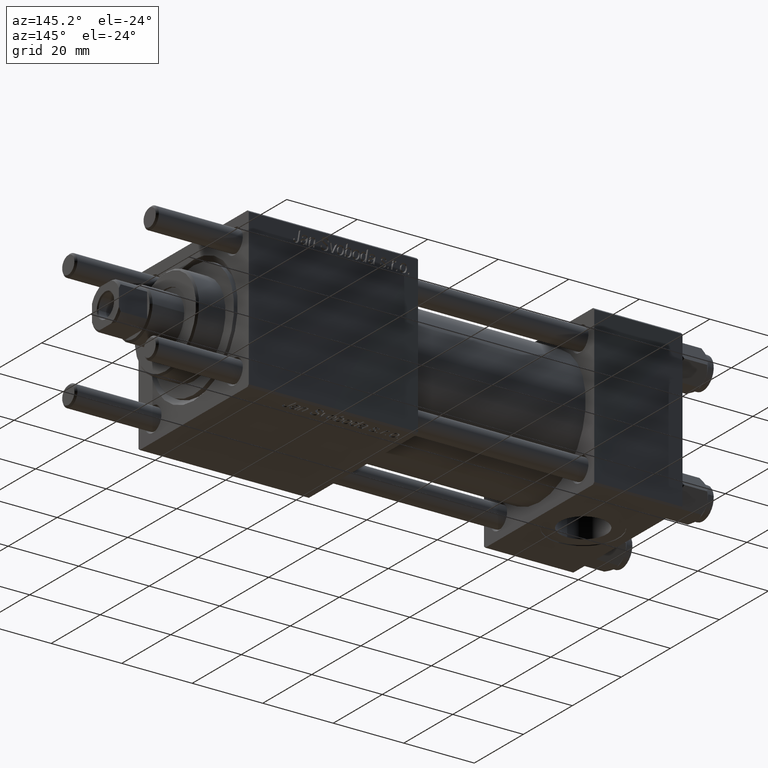
[diagram: clean part render]
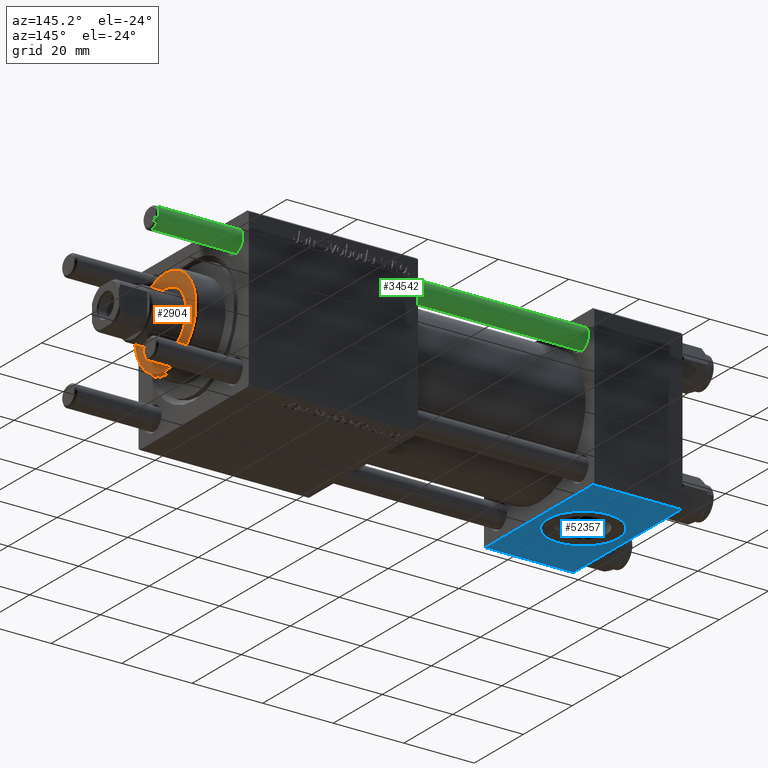
[diagram: same view with three faces highlighted in distinct colors, each labeled with its STEP entity id]
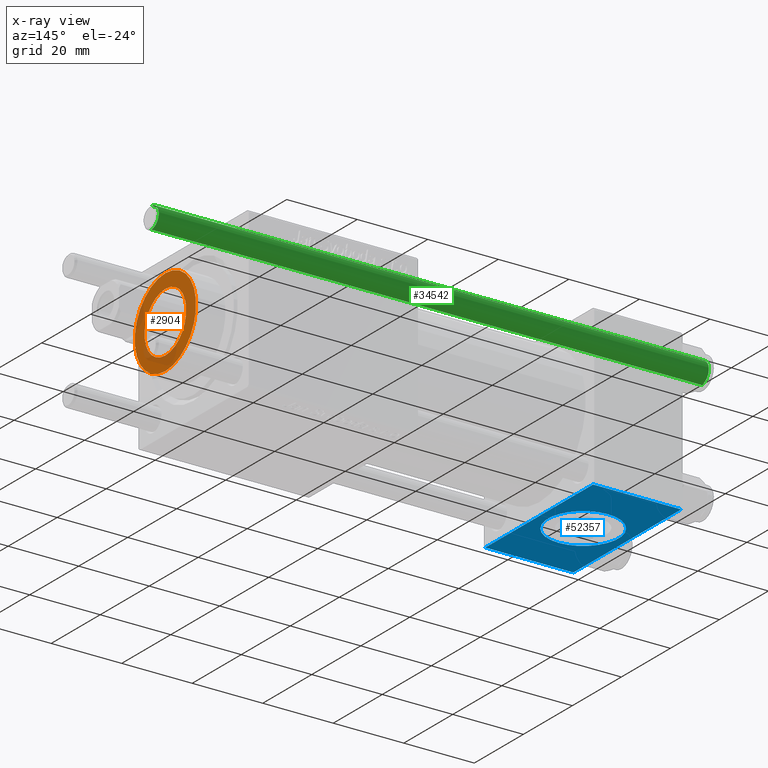
[diagram: x-ray of the same camera — body ghosted, the three highlighted faces saturated]
A machine part, auxiliary view with three faces highlighted in distinct colors.
The next image is the same camera in x-ray (body ghosted, the three faces saturated) — at least one of them is partly hidden behind the body in this view.
Their STEP definitions:

[orange] entity #2904 — the highlighted planar face has unit normal (1, 0, 0).
#600 = FACE_BOUND ( 'NONE', #33283, .T. ) ;
#862 = DIRECTION ( 'NONE',  ( 0.000000000000000000, 0.000000000000000000, 1.000000000000000000 ) ) ;
#1256 = DIRECTION ( 'NONE',  ( 0.000000000000000000, 0.000000000000000000, 1.000000000000000000 ) ) ;
#2904 = ADVANCED_FACE ( 'NONE', ( #600, #8664 ), #17843, .T. ) ;
#4556 = EDGE_LOOP ( 'NONE', ( #48103, #37618 ) ) ;
#8631 = DIRECTION ( 'NONE',  ( 0.000000000000000000, 0.000000000000000000, 1.000000000000000000 ) ) ;
#8664 = FACE_OUTER_BOUND ( 'NONE', #4556, .T. ) ;
#8905 = DIRECTION ( 'NONE',  ( 1.000000000000000000, 0.000000000000000000, 0.000000000000000000 ) ) ;
#11974 = CIRCLE ( 'NONE', #40408, 12.50000000000001066 ) ;
#12709 = VERTEX_POINT ( 'NONE', #14863 ) ;
#14863 = CARTESIAN_POINT ( 'NONE',  ( -12.50000000000001066, 0.000000000000000000, 36.69999999999999574 ) ) ;
#15055 = DIRECTION ( 'NONE',  ( 0.000000000000000000, 0.000000000000000000, 1.000000000000000000 ) ) ;
#15156 = ORIENTED_EDGE ( 'NONE', *, *, #29427, .F. ) ;
#17193 = CIRCLE ( 'NONE', #21777, 12.50000000000001066 ) ;
#17843 = PLANE ( 'NONE',  #20285 ) ;
#19200 = CIRCLE ( 'NONE', #26521, 8.500000000000000000 ) ;
#20285 = AXIS2_PLACEMENT_3D ( 'NONE', #30765, #44520, #22707 ) ;
#21777 = AXIS2_PLACEMENT_3D ( 'NONE', #49483, #1256, #36287 ) ;
#22000 = CIRCLE ( 'NONE', #44922, 8.500000000000000000 ) ;
#22092 = CARTESIAN_POINT ( 'NONE',  ( 8.500000000000000000, 0.000000000000000000, 36.69999999999999574 ) ) ;
#22707 = DIRECTION ( 'NONE',  ( 1.000000000000000000, 0.000000000000000000, -0.000000000000000000 ) ) ;
#22740 = EDGE_CURVE ( 'NONE', #40195, #12709, #17193, .T. ) ;
#26308 = VERTEX_POINT ( 'NONE', #42284 ) ;
#26521 = AXIS2_PLACEMENT_3D ( 'NONE', #28247, #15055, #54938 ) ;
#27279 = DIRECTION ( 'NONE',  ( 1.000000000000000000, 0.000000000000000000, 0.000000000000000000 ) ) ;
#27734 = ORIENTED_EDGE ( 'NONE', *, *, #30985, .F. ) ;
#28247 = CARTESIAN_POINT ( 'NONE',  ( 0.000000000000000000, 0.000000000000000000, 36.69999999999999574 ) ) ;
#29427 = EDGE_CURVE ( 'NONE', #26308, #56245, #19200, .T. ) ;
#30765 = CARTESIAN_POINT ( 'NONE',  ( 0.000000000000000000, 0.000000000000000000, 36.69999999999999574 ) ) ;
#30985 = EDGE_CURVE ( 'NONE', #56245, #26308, #22000, .T. ) ;
#32610 = EDGE_CURVE ( 'NONE', #12709, #40195, #11974, .T. ) ;
#33283 = EDGE_LOOP ( 'NONE', ( #27734, #15156 ) ) ;
#34391 = CARTESIAN_POINT ( 'NONE',  ( 12.50000000000001066, 1.561424668912876097E-15, 36.69999999999999574 ) ) ;
#35032 = CARTESIAN_POINT ( 'NONE',  ( 0.000000000000000000, 0.000000000000000000, 36.69999999999999574 ) ) ;
#36287 = DIRECTION ( 'NONE',  ( 1.000000000000000000, 0.000000000000000000, 0.000000000000000000 ) ) ;
#37618 = ORIENTED_EDGE ( 'NONE', *, *, #22740, .T. ) ;
#40195 = VERTEX_POINT ( 'NONE', #34391 ) ;
#40408 = AXIS2_PLACEMENT_3D ( 'NONE', #47681, #862, #27279 ) ;
#42284 = CARTESIAN_POINT ( 'NONE',  ( -8.500000000000000000, 1.040949779275250140E-15, 36.69999999999999574 ) ) ;
#44520 = DIRECTION ( 'NONE',  ( 0.000000000000000000, 0.000000000000000000, 1.000000000000000000 ) ) ;
#44922 = AXIS2_PLACEMENT_3D ( 'NONE', #35032, #8631, #8905 ) ;
#47681 = CARTESIAN_POINT ( 'NONE',  ( 0.000000000000000000, 0.000000000000000000, 36.69999999999999574 ) ) ;
#48103 = ORIENTED_EDGE ( 'NONE', *, *, #32610, .T. ) ;
#49483 = CARTESIAN_POINT ( 'NONE',  ( 0.000000000000000000, 0.000000000000000000, 36.69999999999999574 ) ) ;
#54938 = DIRECTION ( 'NONE',  ( 1.000000000000000000, 0.000000000000000000, 0.000000000000000000 ) ) ;
#56245 = VERTEX_POINT ( 'NONE', #22092 ) ;

[blue] entity #52357 — the highlighted planar face has unit normal (0, 0, -1).
#528 = ORIENTED_EDGE ( 'NONE', *, *, #33597, .F. ) ;
#2795 = AXIS2_PLACEMENT_3D ( 'NONE', #39071, #22122, #4337 ) ;
#3223 = VERTEX_POINT ( 'NONE', #28358 ) ;
#3735 = CIRCLE ( 'NONE', #2795, 10.00000000000000178 ) ;
#3782 = VECTOR ( 'NONE', #36614, 1000.000000000000000 ) ;
#4126 = EDGE_LOOP ( 'NONE', ( #53252, #528 ) ) ;
#4337 = DIRECTION ( 'NONE',  ( 0.000000000000000000, 1.000000000000000000, 0.000000000000000000 ) ) ;
#5605 = CARTESIAN_POINT ( 'NONE',  ( 25.00000000000000000, 21.99999999999999289, -22.49999999999999645 ) ) ;
#5719 = LINE ( 'NONE', #23244, #49802 ) ;
#7456 = VERTEX_POINT ( 'NONE', #31062 ) ;
#9746 = VERTEX_POINT ( 'NONE', #5605 ) ;
#9789 = DIRECTION ( 'NONE',  ( 0.000000000000000000, -1.000000000000000000, -2.312964634635742957E-16 ) ) ;
#11684 = VERTEX_POINT ( 'NONE', #24560 ) ;
#12097 = FACE_BOUND ( 'NONE', #4126, .T. ) ;
#12282 = CARTESIAN_POINT ( 'NONE',  ( 12.50000000000000178, 3.566060716959379104E-15, -22.50000000000000000 ) ) ;
#12915 = CARTESIAN_POINT ( 'NONE',  ( 0.000000000000000000, 21.99999999999999289, -22.49999999999999645 ) ) ;
#13915 = VERTEX_POINT ( 'NONE', #45787 ) ;
#14226 = EDGE_LOOP ( 'NONE', ( #15369, #56803, #29485, #24202 ) ) ;
#14754 = VECTOR ( 'NONE', #9789, 1000.000000000000000 ) ;
#15369 = ORIENTED_EDGE ( 'NONE', *, *, #55068, .F. ) ;
#22122 = DIRECTION ( 'NONE',  ( 0.000000000000000000, -1.734723475976806848E-16, -1.000000000000000000 ) ) ;
#23244 = CARTESIAN_POINT ( 'NONE',  ( 0.000000000000000000, -21.99999999999998579, -22.50000000000000711 ) ) ;
#24202 = ORIENTED_EDGE ( 'NONE', *, *, #45306, .T. ) ;
#24560 = CARTESIAN_POINT ( 'NONE',  ( 12.50000000000000178, 10.00000000000000533, -22.50000000000000000 ) ) ;
#25316 = FACE_OUTER_BOUND ( 'NONE', #14226, .T. ) ;
#25587 = DIRECTION ( 'NONE',  ( 0.000000000000000000, 2.312964634635742957E-16, -1.000000000000000000 ) ) ;
#28358 = CARTESIAN_POINT ( 'NONE',  ( 12.50000000000000355, -9.999999999999998224, -22.50000000000000000 ) ) ;
#29485 = ORIENTED_EDGE ( 'NONE', *, *, #34341, .T. ) ;
#29798 = DIRECTION ( 'NONE',  ( 0.000000000000000000, -1.734723475976806848E-16, -1.000000000000000000 ) ) ;
#31062 = CARTESIAN_POINT ( 'NONE',  ( 25.00000000000000000, -21.99999999999997158, -22.50000000000000711 ) ) ;
#31704 = LINE ( 'NONE', #35705, #52462 ) ;
#32304 = CIRCLE ( 'NONE', #41471, 10.00000000000000178 ) ;
#33597 = EDGE_CURVE ( 'NONE', #3223, #11684, #3735, .T. ) ;
#34341 = EDGE_CURVE ( 'NONE', #9746, #7456, #44803, .T. ) ;
#35009 = EDGE_CURVE ( 'NONE', #46998, #9746, #50393, .T. ) ;
#35705 = CARTESIAN_POINT ( 'NONE',  ( 0.000000000000000000, 22.50000000000000000, -22.49999999999999645 ) ) ;
#36614 = DIRECTION ( 'NONE',  ( 1.000000000000000000, 0.000000000000000000, 0.000000000000000000 ) ) ;
#37695 = AXIS2_PLACEMENT_3D ( 'NONE', #43647, #25587, #56318 ) ;
#39071 = CARTESIAN_POINT ( 'NONE',  ( 12.50000000000000178, 3.566060716959379104E-15, -22.50000000000000000 ) ) ;
#39341 = PLANE ( 'NONE',  #37695 ) ;
#40739 = DIRECTION ( 'NONE',  ( -1.000000000000000000, 0.000000000000000000, 0.000000000000000000 ) ) ;
#41471 = AXIS2_PLACEMENT_3D ( 'NONE', #12282, #29798, #47292 ) ;
#41762 = CARTESIAN_POINT ( 'NONE',  ( 25.00000000000000000, 21.99999999999999289, -22.49999999999999645 ) ) ;
#43647 = CARTESIAN_POINT ( 'NONE',  ( 25.00000000000000000, 22.50000000000000000, -22.49999999999999645 ) ) ;
#44803 = LINE ( 'NONE', #48838, #14754 ) ;
#45306 = EDGE_CURVE ( 'NONE', #7456, #13915, #5719, .T. ) ;
#45787 = CARTESIAN_POINT ( 'NONE',  ( 0.000000000000000000, -21.99999999999997158, -22.50000000000000711 ) ) ;
#46998 = VERTEX_POINT ( 'NONE', #12915 ) ;
#47292 = DIRECTION ( 'NONE',  ( 0.000000000000000000, 1.000000000000000000, 0.000000000000000000 ) ) ;
#48838 = CARTESIAN_POINT ( 'NONE',  ( 25.00000000000000000, 22.50000000000000000, -22.49999999999999645 ) ) ;
#49770 = DIRECTION ( 'NONE',  ( 0.000000000000000000, -1.000000000000000000, -2.312964634635742957E-16 ) ) ;
#49802 = VECTOR ( 'NONE', #40739, 1000.000000000000000 ) ;
#50393 = LINE ( 'NONE', #41762, #3782 ) ;
#52357 = ADVANCED_FACE ( 'NONE', ( #12097, #25316 ), #39341, .T. ) ;
#52462 = VECTOR ( 'NONE', #49770, 1000.000000000000000 ) ;
#53252 = ORIENTED_EDGE ( 'NONE', *, *, #55433, .F. ) ;
#55068 = EDGE_CURVE ( 'NONE', #46998, #13915, #31704, .T. ) ;
#55433 = EDGE_CURVE ( 'NONE', #11684, #3223, #32304, .T. ) ;
#56318 = DIRECTION ( 'NONE',  ( 0.000000000000000000, 1.000000000000000000, 2.312964634635742957E-16 ) ) ;
#56803 = ORIENTED_EDGE ( 'NONE', *, *, #35009, .T. ) ;

[green] entity #34542 — the highlighted cylindrical surface (edge-blend (fillet) strip) has radius 3 mm, axis along (1, -0, -0).
#230 = VERTEX_POINT ( 'NONE', #53384 ) ;
#237 = FACE_OUTER_BOUND ( 'NONE', #27977, .T. ) ;
#1018 = CIRCLE ( 'NONE', #44080, 3.000000000000000444 ) ;
#3456 = VECTOR ( 'NONE', #32984, 1000.000000000000000 ) ;
#3643 = ORIENTED_EDGE ( 'NONE', *, *, #23537, .F. ) ;
#4004 = CYLINDRICAL_SURFACE ( 'NONE', #33129, 3.000000000000000444 ) ;
#8868 = CARTESIAN_POINT ( 'NONE',  ( 0.000000000000000000, 0.000000000000000000, 157.0000000000000000 ) ) ;
#10523 = CARTESIAN_POINT ( 'NONE',  ( 3.000000000000000444, 3.673940397442060361E-16, 156.5000000000000284 ) ) ;
#10704 = CARTESIAN_POINT ( 'NONE',  ( -3.000000000000000444, 0.000000000000000000, 0.4999999999999726885 ) ) ;
#10978 = DIRECTION ( 'NONE',  ( 1.000000000000000000, 0.000000000000000000, 0.000000000000000000 ) ) ;
#13142 = VERTEX_POINT ( 'NONE', #10704 ) ;
#13630 = ORIENTED_EDGE ( 'NONE', *, *, #34798, .T. ) ;
#15478 = CARTESIAN_POINT ( 'NONE',  ( -3.000000000000000444, 0.000000000000000000, 157.0000000000000000 ) ) ;
#16631 = DIRECTION ( 'NONE',  ( -1.000000000000000000, 0.000000000000000000, 0.000000000000000000 ) ) ;
#17197 = CIRCLE ( 'NONE', #52032, 3.000000000000000444 ) ;
#18405 = EDGE_CURVE ( 'NONE', #230, #13142, #17197, .T. ) ;
#23537 = EDGE_CURVE ( 'NONE', #40956, #13142, #54801, .T. ) ;
#25459 = DIRECTION ( 'NONE',  ( 0.000000000000000000, 0.000000000000000000, -1.000000000000000000 ) ) ;
#27977 = EDGE_LOOP ( 'NONE', ( #13630, #47340, #35531, #3643 ) ) ;
#28184 = DIRECTION ( 'NONE',  ( -0.000000000000000000, -0.000000000000000000, -1.000000000000000000 ) ) ;
#29797 = EDGE_CURVE ( 'NONE', #56261, #230, #41092, .T. ) ;
#32525 = CARTESIAN_POINT ( 'NONE',  ( 0.000000000000000000, 0.000000000000000000, 0.4999999999999726885 ) ) ;
#32984 = DIRECTION ( 'NONE',  ( -0.000000000000000000, -0.000000000000000000, -1.000000000000000000 ) ) ;
#33129 = AXIS2_PLACEMENT_3D ( 'NONE', #8868, #52513, #16631 ) ;
#34081 = CARTESIAN_POINT ( 'NONE',  ( 0.000000000000000000, 0.000000000000000000, 156.5000000000000284 ) ) ;
#34399 = CARTESIAN_POINT ( 'NONE',  ( -3.000000000000000444, 0.000000000000000000, 156.5000000000000284 ) ) ;
#34542 = ADVANCED_FACE ( 'NONE', ( #237 ), #4004, .T. ) ;
#34798 = EDGE_CURVE ( 'NONE', #40956, #56261, #1018, .T. ) ;
#35531 = ORIENTED_EDGE ( 'NONE', *, *, #18405, .T. ) ;
#40956 = VERTEX_POINT ( 'NONE', #34399 ) ;
#41092 = LINE ( 'NONE', #45966, #55913 ) ;
#41964 = DIRECTION ( 'NONE',  ( -0.000000000000000000, -0.000000000000000000, 1.000000000000000000 ) ) ;
#42959 = DIRECTION ( 'NONE',  ( 1.000000000000000000, 0.000000000000000000, 0.000000000000000000 ) ) ;
#44080 = AXIS2_PLACEMENT_3D ( 'NONE', #34081, #25459, #42959 ) ;
#45966 = CARTESIAN_POINT ( 'NONE',  ( 3.000000000000000444, 3.673940397442060361E-16, 157.0000000000000000 ) ) ;
#47340 = ORIENTED_EDGE ( 'NONE', *, *, #29797, .T. ) ;
#52032 = AXIS2_PLACEMENT_3D ( 'NONE', #32525, #41964, #10978 ) ;
#52513 = DIRECTION ( 'NONE',  ( -0.000000000000000000, -0.000000000000000000, -1.000000000000000000 ) ) ;
#53384 = CARTESIAN_POINT ( 'NONE',  ( 3.000000000000000444, 3.673940397442060361E-16, 0.4999999999999726885 ) ) ;
#54801 = LINE ( 'NONE', #15478, #3456 ) ;
#55913 = VECTOR ( 'NONE', #28184, 1000.000000000000000 ) ;
#56261 = VERTEX_POINT ( 'NONE', #10523 ) ;